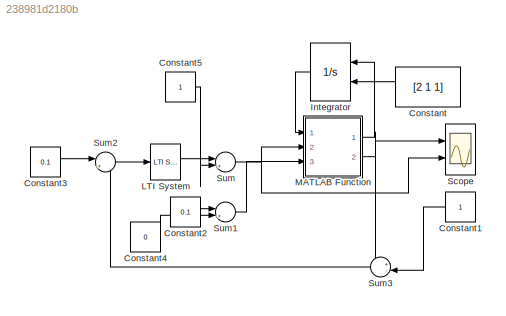
MODEL slx_238981d2180b
KIND model
CONFIG AbsTol = auto
CONFIG EnableMultiTasking = off
CONFIG FixedStep = 0.001
CONFIG MaxStep = auto
CONFIG MinStep = auto
CONFIG RelTol = 1e-3
CONFIG SampleTimeConstraint = Unconstrained
CONFIG SolverName = ode4
CONFIG StartTime = 0.0
CONFIG StopTime = 30.0
BLOCK [Constant] Constant
  Value = [2 1 1]
BLOCK [Constant] Constant1
BLOCK [Constant] Constant2
  Value = 0.1
BLOCK [Constant] Constant3
  Value = 0.1
BLOCK [Constant] Constant4
  Value = 0
BLOCK [Constant] Constant5
BLOCK [Integrator] Integrator
  InitialConditionSource = external
  Ports = [2, 1]
BLOCK [Reference] LTI System  REF=cstblocks/LTI System
  Ports = [1, 1]
  SourceBlock = cstblocks/LTI System
  SourceType = LTI Block
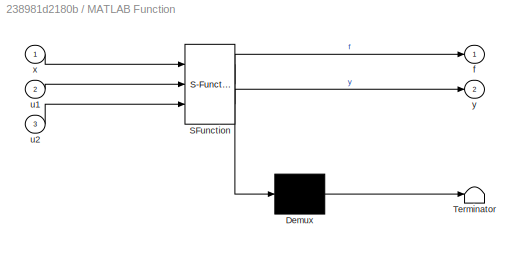
BLOCK [SubSystem] MATLAB Function
  ErrorFcn = Stateflow.Translate.translate
  PermitHierarchicalResolution = ExplicitOnly
  Ports = [3, 2]
  SFBlockType = MATLAB Function
  TreatAsAtomicUnit = on
BLOCK [Demux] MATLAB Function/ Demux 
  Outputs = 1
  Ports = [1, 1]
BLOCK [S-Function] MATLAB Function/ SFunction 
  EnableBusSupport = off
  FunctionName = sf_sfun
  PortCounts = [3 3]
  Ports = [3, 3]
  SFcnIsStateOwnerBlock = off
  SFunctionDeploymentMode = off
  Tag = Stateflow S-Function 2
BLOCK [Terminator] MATLAB Function/ Terminator 
BLOCK [Outport] MATLAB Function/f
BLOCK [Inport] MATLAB Function/u1
  Port = 2
BLOCK [Inport] MATLAB Function/u2
  Port = 3
BLOCK [Inport] MATLAB Function/x
BLOCK [Outport] MATLAB Function/y
  Port = 2
BLOCK [Scope] Scope
  Floating = off
  NumInputPorts = 2
  Ports = [2]
  ScopeSpecificationString = Simulink.scopes.TimeScopeBlockCfg('CurrentConfiguration', extmgr.ConfigurationSet(extmgr.Configuration('Core','General UI',true,'FigureColor',[1 1 1]),extmgr.Configuration('Core','Source UI',true),extmgr.Configuration('Sources','WiredSimulink',true),extmgr.Configuration('Visuals','Time Domain',true,'SerializedDisplays',{struct('MinYLimReal','0.9864','MaxYLimReal','1.12236','YLabelReal','','MinYLim...<+3842ch>
BLOCK [Sum] Sum
  Inputs = |++
  Ports = [2, 1]
BLOCK [Sum] Sum1
  Inputs = |++
  Ports = [2, 1]
BLOCK [Sum] Sum2
  Inputs = |+-
  Ports = [2, 1]
BLOCK [Sum] Sum3
  Inputs = +-|
  Ports = [2, 1]
LINE Constant1:1 -> Sum3:2
LINE Constant2:1 -> Sum1:1
LINE Constant3:1 -> Sum2:1
LINE Constant4:1 -> Sum1:2
LINE Constant5:1 -> Sum:2
LINE Constant:1 -> Integrator:2
LINE Integrator:1 -> MATLAB Function:1
LINE LTI System:1 -> Sum:1
LINE MATLAB Function:1 -> Integrator:1
NET MATLAB Function:2 -> Scope:1, Sum3:1
LINE Sum1:1 -> MATLAB Function:3
LINE Sum2:1 -> LTI System:1
LINE Sum3:1 -> Sum2:2
NET Sum:1 -> MATLAB Function:2, Scope:2
note: NET lines group one-source signal fan-out (src -> all destinations, sorted); 1:1 wires keep LINE
CHART MATLAB Function states=1 transitions=1
  STATE_LABEL 'eML_blk_kernel()'
  STATE_LABEL 'SCRIPT:\nfunction [f,y] = fcn(x, u1, u2)\n\nf1=(x(3) - sqrt(x(1)-x(2)))/x(1)^2;\nf2=(sqrt(x(1)-x(2)) - sqrt(x(2)) + u2)/x(2)^2;\nf3=0.02*(u1-x(3));\n\nf=[f1;f2;f3];\n\ny=x(2);\n'
CHART  states=0 transitions=0
